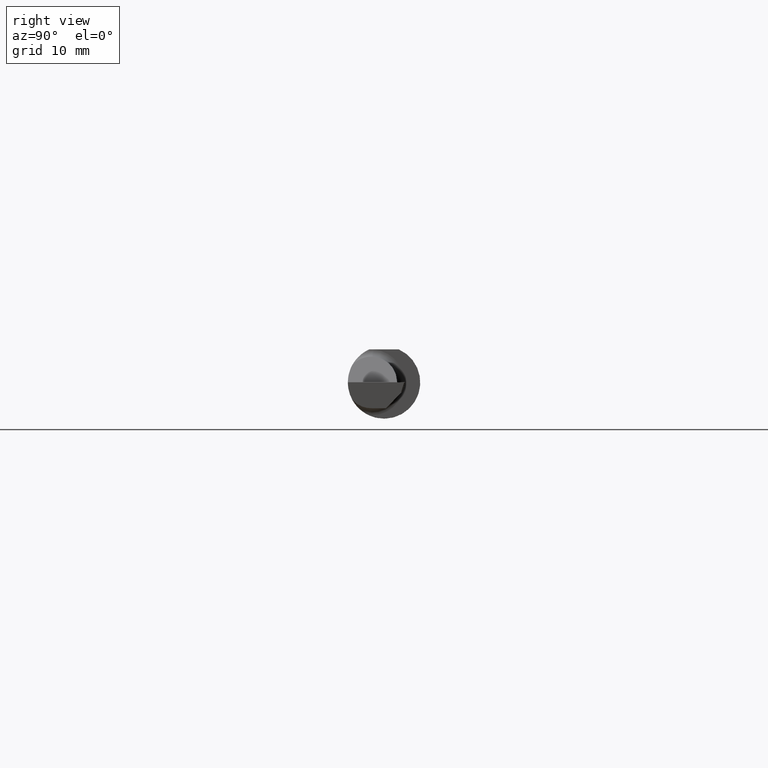
[diagram: clean part render]
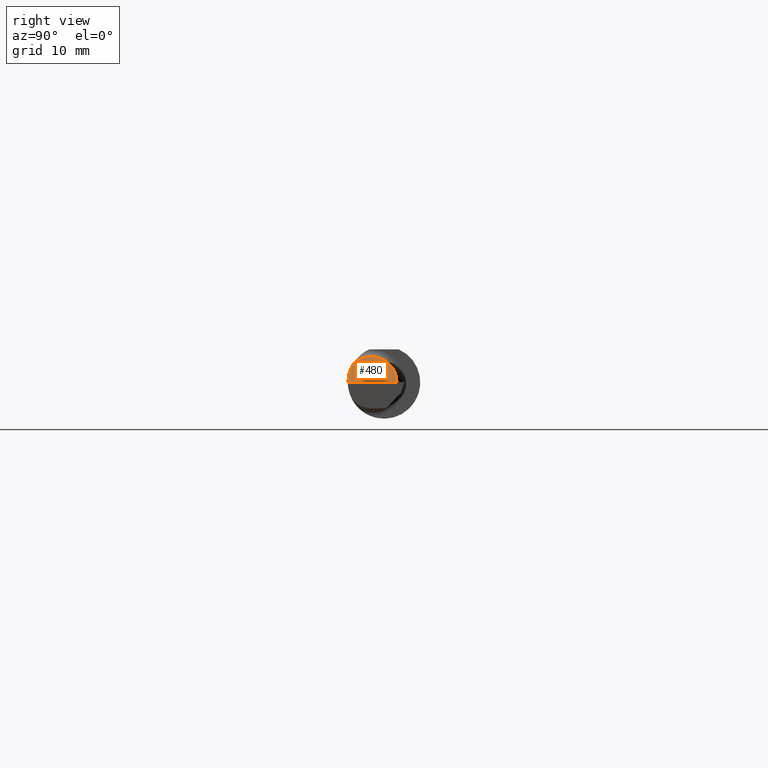
[diagram: same view with one face highlighted and labeled with its STEP entity id]
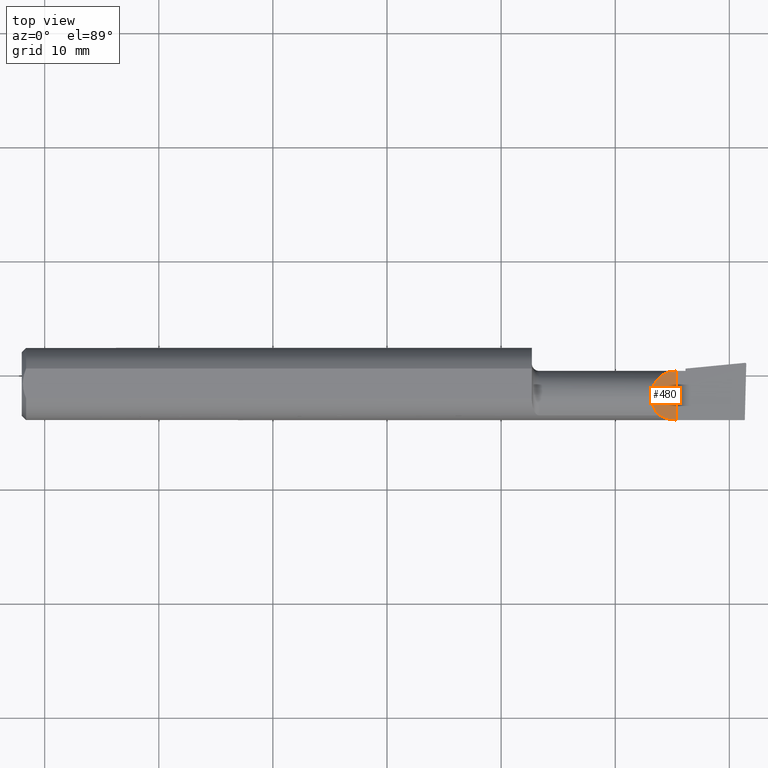
[diagram: same view with one face highlighted and labeled with its STEP entity id]
A machine part, right view. The second image highlights one B-rep face of the part: STEP entity #480.
A second angle (top view) of the same face is appended — the face is thin or edge-on in the first view.
In plain terms, the highlighted planar face has unit normal (-0.7071, 0, -0.7071).
Its self-contained STEP definition (entity closure, byte-faithful):
#14 = CARTESIAN_POINT ( 'NONE',  ( 2.171350000000000335, -0.06910891545235446631, 0.08900000000000002354 ) ) ;
#31 = ORIENTED_EDGE ( 'NONE', *, *, #987, .T. ) ;
#32 = CARTESIAN_POINT ( 'NONE',  ( 2.200086239175846003, -0.1093425883694415096, 0.06026376082415429991 ) ) ;
#81 = CARTESIAN_POINT ( 'NONE',  ( 2.238932527582365051, -0.1247904493837345280, 0.02141747241763532206 ) ) ;
#83 = ORIENTED_EDGE ( 'NONE', *, *, #419, .F. ) ;
#94 = CARTESIAN_POINT ( 'NONE',  ( 2.200086239175846003, -0.1093425883694415096, 0.06026376082415429991 ) ) ;
#117 = CARTESIAN_POINT ( 'NONE',  ( 2.171350000000000335, -0.04385000000000000009, 0.08899999999999999578 ) ) ;
#158 = VERTEX_POINT ( 'NONE', #967 ) ;
#172 =( BOUNDED_CURVE ( )  B_SPLINE_CURVE ( 3, ( #1200, #81, #592, #1311 ),
 .UNSPECIFIED., .F., .T. ) 
 B_SPLINE_CURVE_WITH_KNOTS ( ( 4, 4 ),
 ( 4.715192348093415475, 5.216111826723991207 ),
 .UNSPECIFIED. ) 
 CURVE ( )  GEOMETRIC_REPRESENTATION_ITEM ( )  RATIONAL_B_SPLINE_CURVE ( ( 1.000000000000000000, 0.9791990519953640559, 0.9791990519953640559, 1.000000000000000000 ) ) 
 REPRESENTATION_ITEM ( '' )  );
#181 = LINE ( 'NONE', #568, #1173 ) ;
#194 = EDGE_CURVE ( 'NONE', #158, #393, #452, .T. ) ;
#256 = CARTESIAN_POINT ( 'NONE',  ( 2.171350000000000335, 0.008122574649202962682, 0.08900000000000000966 ) ) ;
#317 = CARTESIAN_POINT ( 'NONE',  ( 2.181498916115400810, -0.09223924859979849844, 0.07885108388459914630 ) ) ;
#322 = VERTEX_POINT ( 'NONE', #1010 ) ;
#334 = EDGE_LOOP ( 'NONE', ( #947, #1106, #31, #83 ) ) ;
#369 = CARTESIAN_POINT ( 'NONE',  ( 2.171350000000000335, -0.04385000000000000009, 0.08899999999999999578 ) ) ;
#383 = PLANE ( 'NONE',  #652 ) ;
#393 = VERTEX_POINT ( 'NONE', #369 ) ;
#414 = DIRECTION ( 'NONE',  ( -0.7071067811865475727, 0.000000000000000000, -0.7071067811865475727 ) ) ;
#419 = EDGE_CURVE ( 'NONE', #322, #1283, #172, .T. ) ;
#449 = CARTESIAN_POINT ( 'NONE',  ( 2.208027827235976570, 0.04494492526557257450, 0.05232217276402377493 ) ) ;
#452 =( BOUNDED_CURVE ( )  B_SPLINE_CURVE ( 3, ( #1185, #449, #256, #749 ),
 .UNSPECIFIED., .F., .T. ) 
 B_SPLINE_CURVE_WITH_KNOTS ( ( 4, 4 ),
 ( 4.716321574790804050, 6.283185307179586232 ),
 .UNSPECIFIED. ) 
 CURVE ( )  GEOMETRIC_REPRESENTATION_ITEM ( )  RATIONAL_B_SPLINE_CURVE ( ( 1.000000000000000000, 0.8056638636166330025, 0.8056638636166330025, 1.000000000000000000 ) ) 
 REPRESENTATION_ITEM ( '' )  );
#480 = ADVANCED_FACE ( 'NONE', ( #891 ), #383, .F. ) ;
#568 = CARTESIAN_POINT ( 'NONE',  ( 2.260000000000000231, 0.1499999999999999944, 0.0003499999999999638925 ) ) ;
#592 = CARTESIAN_POINT ( 'NONE',  ( 2.218537028253239729, -0.1195116721323034037, 0.04181297174676051193 ) ) ;
#652 = AXIS2_PLACEMENT_3D ( 'NONE', #1016, #414, #721 ) ;
#721 = DIRECTION ( 'NONE',  ( -0.7071067811865474617, 0.000000000000000000, 0.7071067811865474617 ) ) ;
#749 = CARTESIAN_POINT ( 'NONE',  ( 2.171350000000000335, -0.04385000000000000009, 0.08899999999999999578 ) ) ;
#853 = EDGE_CURVE ( 'NONE', #158, #322, #181, .T. ) ;
#891 = FACE_OUTER_BOUND ( 'NONE', #334, .T. ) ;
#947 = ORIENTED_EDGE ( 'NONE', *, *, #853, .F. ) ;
#967 = CARTESIAN_POINT ( 'NONE',  ( 2.260000000000000231, 0.04514931179509204529, 0.0003499999999999638925 ) ) ;
#987 = EDGE_CURVE ( 'NONE', #393, #1283, #1318, .T. ) ;
#1010 = CARTESIAN_POINT ( 'NONE',  ( 2.260000000000000231, -0.1248495094103296843, 0.0003499999999999383053 ) ) ;
#1016 = CARTESIAN_POINT ( 'NONE',  ( 2.146500000000000075, 0.1000000000000000056, 0.1138500000000000068 ) ) ;
#1073 = DIRECTION ( 'NONE',  ( 0.000000000000000000, -1.000000000000000000, 0.000000000000000000 ) ) ;
#1106 = ORIENTED_EDGE ( 'NONE', *, *, #194, .T. ) ;
#1173 = VECTOR ( 'NONE', #1073, 39.37007874015748143 ) ;
#1185 = CARTESIAN_POINT ( 'NONE',  ( 2.260000000000000231, 0.04514931179509204529, 0.0003499999999999638925 ) ) ;
#1200 = CARTESIAN_POINT ( 'NONE',  ( 2.260000000000000231, -0.1248495094103296843, 0.0003499999999999383053 ) ) ;
#1283 = VERTEX_POINT ( 'NONE', #32 ) ;
#1311 = CARTESIAN_POINT ( 'NONE',  ( 2.200086239175846003, -0.1093425883694415096, 0.06026376082415429991 ) ) ;
#1318 =( BOUNDED_CURVE ( )  B_SPLINE_CURVE ( 3, ( #117, #14, #317, #94 ),
 .UNSPECIFIED., .F., .T. ) 
 B_SPLINE_CURVE_WITH_KNOTS ( ( 4, 4 ),
 ( 0.000000000000000000, 0.8269532615970635048 ),
 .UNSPECIFIED. ) 
 CURVE ( )  GEOMETRIC_REPRESENTATION_ITEM ( )  RATIONAL_B_SPLINE_CURVE ( ( 1.000000000000000000, 0.9438196436970130998, 0.9438196436970130998, 1.000000000000000000 ) ) 
 REPRESENTATION_ITEM ( '' )  );